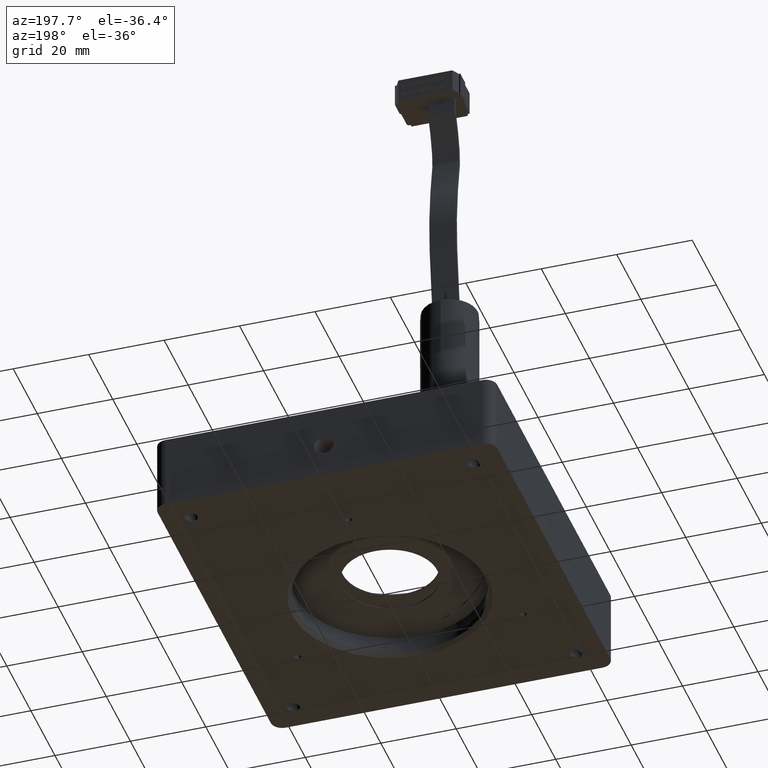
[diagram: clean part render]
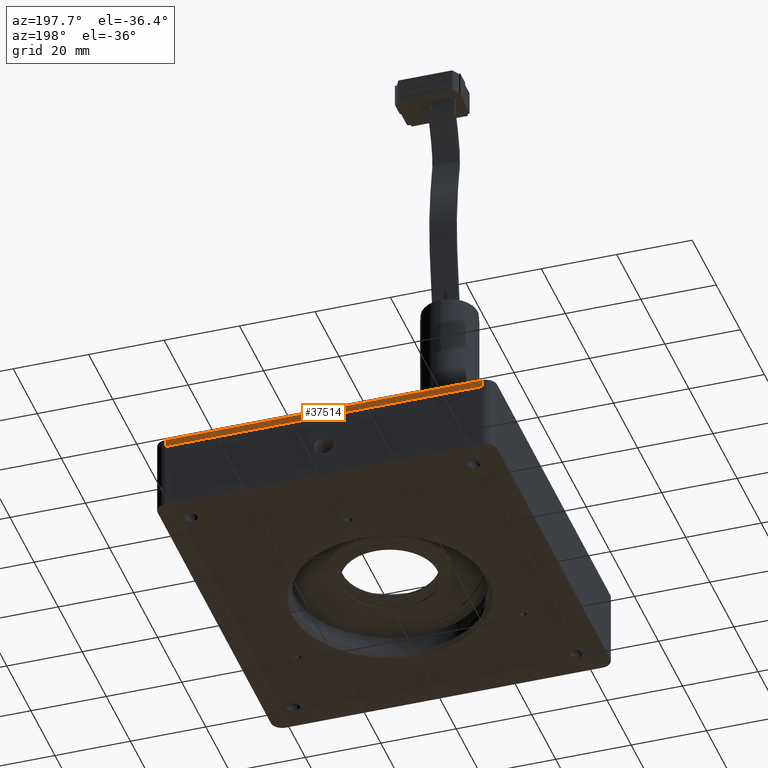
[diagram: same view with one face highlighted and labeled with its STEP entity id]
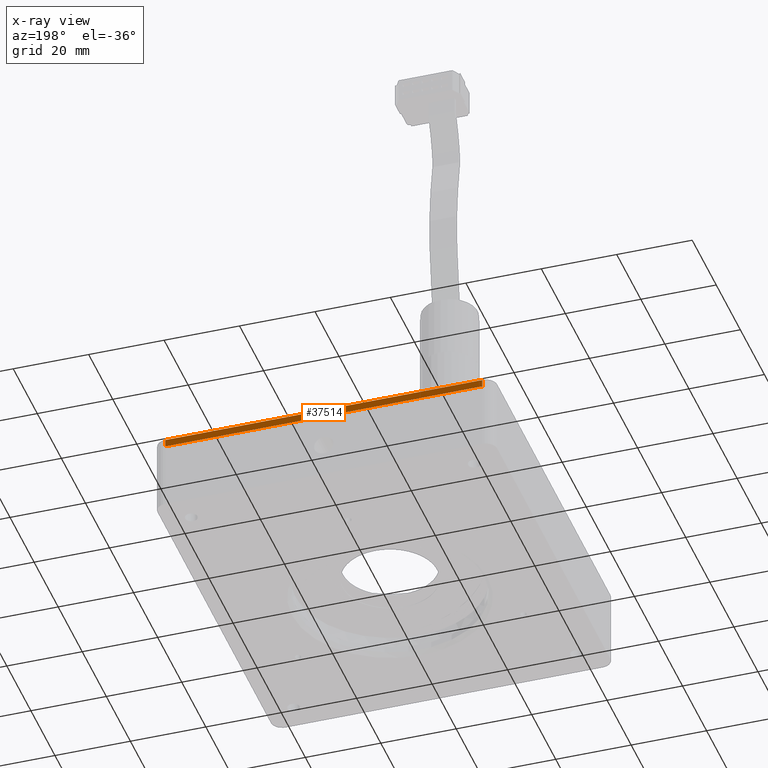
[diagram: x-ray of the same camera — body ghosted, the highlighted face saturated]
A machine part, auxiliary view. The second image highlights one B-rep face of the part: STEP entity #37514.
The next image is the same camera in x-ray: the body ghosted, the highlighted face saturated — about 0% of this face is hidden behind the body in this view.
In plain terms, the highlighted planar face has unit normal (0, -1, 0).
Its self-contained STEP definition (entity closure, byte-faithful):
#2442 = DIRECTION ( 'NONE',  ( 0.0000000000000000000, -1.000000000000000000, 0.0000000000000000000 ) ) ;
#6389 = CARTESIAN_POINT ( 'NONE',  ( -45.00000000000001400, 50.00000000000000000, 0.0000000000000000000 ) ) ;
#6551 = DIRECTION ( 'NONE',  ( 0.0000000000000000000, -0.0000000000000000000, -1.000000000000000000 ) ) ;
#8195 = VECTOR ( 'NONE', #31162, 1000.000000000000000 ) ;
#10798 = VERTEX_POINT ( 'NONE', #43369 ) ;
#11264 = EDGE_CURVE ( 'NONE', #10798, #50452, #21625, .T. ) ;
#11895 = CARTESIAN_POINT ( 'NONE',  ( -45.00000000000001400, 50.00000000000000000, 2.000000000000000000 ) ) ;
#16980 = CARTESIAN_POINT ( 'NONE',  ( 41.99999999999995700, 50.00000000000000000, 0.0000000000000000000 ) ) ;
#18329 = CARTESIAN_POINT ( 'NONE',  ( -42.00000000000000700, 50.00000000000000000, 2.000000000000000000 ) ) ;
#18936 = EDGE_LOOP ( 'NONE', ( #51803, #48861, #49703, #34555 ) ) ;
#21625 = LINE ( 'NONE', #11895, #36993 ) ;
#21682 = EDGE_CURVE ( 'NONE', #10798, #47613, #31186, .T. ) ;
#21794 = CARTESIAN_POINT ( 'NONE',  ( -42.00000000000000700, 50.00000000000000000, 2.000000000000000000 ) ) ;
#22745 = PLANE ( 'NONE',  #25019 ) ;
#23481 = CARTESIAN_POINT ( 'NONE',  ( -45.00000000000001400, 50.00000000000000000, 2.000000000000000000 ) ) ;
#24421 = DIRECTION ( 'NONE',  ( -1.000000000000000000, -0.0000000000000000000, -0.0000000000000000000 ) ) ;
#25019 = AXIS2_PLACEMENT_3D ( 'NONE', #23481, #2442, #6551 ) ;
#25244 = VERTEX_POINT ( 'NONE', #32730 ) ;
#27971 = VECTOR ( 'NONE', #36464, 1000.000000000000000 ) ;
#28538 = CARTESIAN_POINT ( 'NONE',  ( 41.99999999999997900, 50.00000000000000000, 2.000000000000000000 ) ) ;
#31162 = DIRECTION ( 'NONE',  ( -1.000000000000000000, -0.0000000000000000000, -0.0000000000000000000 ) ) ;
#31186 = LINE ( 'NONE', #28538, #27971 ) ;
#31698 = VECTOR ( 'NONE', #51292, 1000.000000000000000 ) ;
#32681 = EDGE_CURVE ( 'NONE', #47613, #25244, #44123, .T. ) ;
#32730 = CARTESIAN_POINT ( 'NONE',  ( -42.00000000000000700, 50.00000000000000000, 0.0000000000000000000 ) ) ;
#34555 = ORIENTED_EDGE ( 'NONE', *, *, #21682, .T. ) ;
#36464 = DIRECTION ( 'NONE',  ( 0.0000000000000000000, 0.0000000000000000000, -1.000000000000000000 ) ) ;
#36993 = VECTOR ( 'NONE', #24421, 1000.000000000000000 ) ;
#37514 = ADVANCED_FACE ( 'NONE', ( #44296 ), #22745, .F. ) ;
#43369 = CARTESIAN_POINT ( 'NONE',  ( 41.99999999999995700, 50.00000000000000000, 2.000000000000000000 ) ) ;
#44123 = LINE ( 'NONE', #6389, #8195 ) ;
#44296 = FACE_OUTER_BOUND ( 'NONE', #18936, .T. ) ;
#47613 = VERTEX_POINT ( 'NONE', #16980 ) ;
#48413 = LINE ( 'NONE', #18329, #31698 ) ;
#48861 = ORIENTED_EDGE ( 'NONE', *, *, #51157, .T. ) ;
#49703 = ORIENTED_EDGE ( 'NONE', *, *, #11264, .F. ) ;
#50452 = VERTEX_POINT ( 'NONE', #21794 ) ;
#51157 = EDGE_CURVE ( 'NONE', #25244, #50452, #48413, .T. ) ;
#51292 = DIRECTION ( 'NONE',  ( -0.0000000000000000000, -0.0000000000000000000, 1.000000000000000000 ) ) ;
#51803 = ORIENTED_EDGE ( 'NONE', *, *, #32681, .T. ) ;